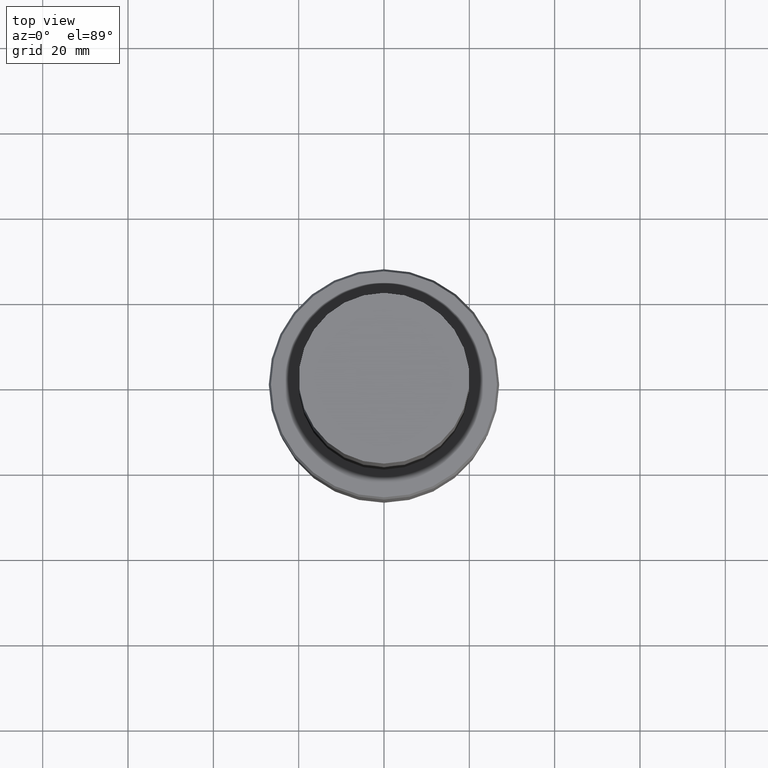
[diagram: clean part render]
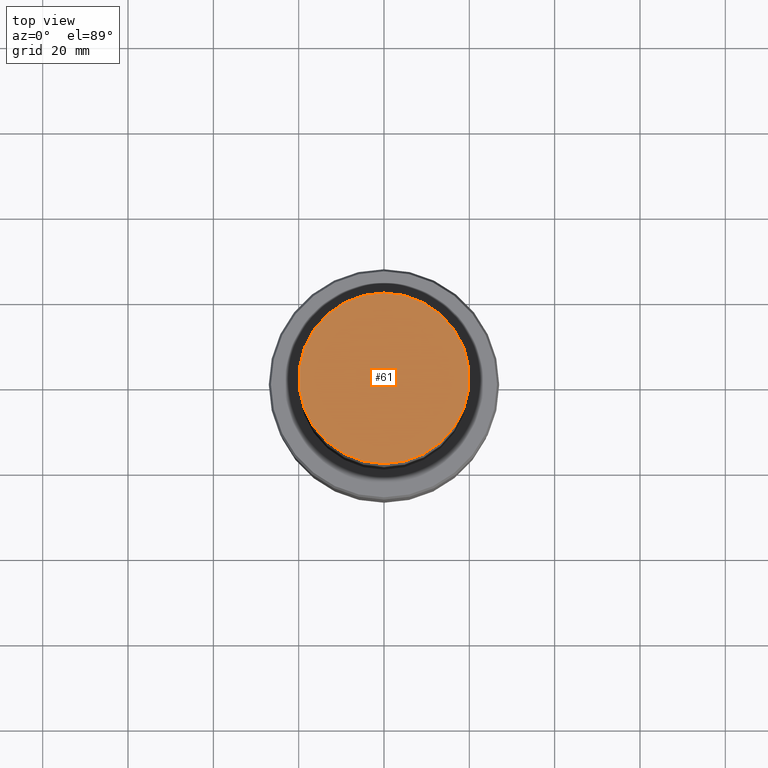
[diagram: same view with one face highlighted and labeled with its STEP entity id]
A machine part, top view. The second image highlights one B-rep face of the part: STEP entity #61.
In plain terms, the highlighted planar face has unit normal (-0, 0, 1).
Its self-contained STEP definition (entity closure, byte-faithful):
#58=EDGE_CURVE('Unnamed[1]',#125,#125,#126,.T.);
#61=ADVANCED_FACE('Unnamed[1]',(#129),#130,.T.);
#125=VERTEX_POINT('',#201);
#126=CIRCLE('',#202,20.0000000000027);
#129=FACE_OUTER_BOUND('',#206,.T.);
#130=PLANE('',#207);
#201=CARTESIAN_POINT('',(-9.39916418345535E-015,20.0000000000027,153.49999999999));
#202=AXIS2_PLACEMENT_3D('',#274,#275,#276);
#206=EDGE_LOOP('',(#278));
#207=AXIS2_PLACEMENT_3D('',#279,#280,#281);
#274=CARTESIAN_POINT('',(-9.39916418345535E-015,-1.87983283669107E-014,153.49999999999));
#275=DIRECTION('',(6.12323399573677E-017,1.22464679914703E-016,-1.0));
#276=DIRECTION('',(-1.23259516440766E-032,1.0,1.22464679914703E-016));
#278=ORIENTED_EDGE('',*,*,#58,.F.);
#279=CARTESIAN_POINT('',(-9.39916418345538E-015,10.0000000000013,153.499999999991));
#280=DIRECTION('',(-6.12323399573677E-017,4.81944413517655E-014,1.0));
#281=DIRECTION('',(-2.94623126417595E-030,-1.0,4.81944413517655E-014));